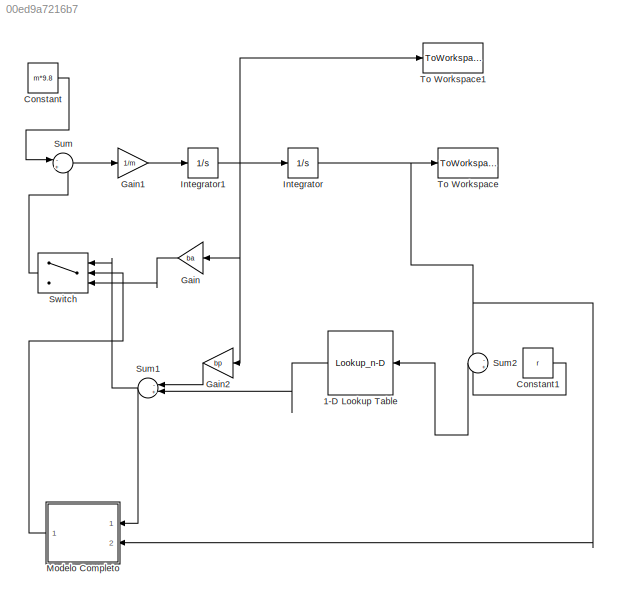
MODEL slx_00ed9a7216b7
KIND model
CONFIG AbsTol = auto
CONFIG EnableMultiTasking = on
CONFIG FixedStep = auto
CONFIG MaxStep = auto
CONFIG MinStep = auto
CONFIG RelTol = 1e-3
CONFIG SampleTimeConstraint = Unconstrained
CONFIG Solver = VariableStepAuto
CONFIG SolverName = VariableStepAuto
CONFIG StartTime = 0.0
CONFIG StopTime = 10
BLOCK [Lookup_n-D] 1-D Lookup Table
  BreakpointsForDimension1 = [0,0.000152979,0.000299869,0.000439218,0.000573908,0.000701165,0.000827118,0.000954278,0.001083536,0.001209584,0.001340158,0.001478477,0.00161775,0.001752221,0.001887395,0.002024889]
  InternalRulePriority = Speed
  NumberOfTableDimensions = 1
  Ports = [1, 1]
  RndMeth = Simplest
  Table = [0,0.0686,0.4214,1.029,1.8424,3.0282,4.4492,6.0564,7.84,10.241,12.74,14.798,16.905,19.6392,22.344,24.843]
BLOCK [Constant] Constant
  Value = m*9.8
BLOCK [Constant] Constant1
  Value = r
BLOCK [Gain] Gain
  Gain = ba
  OutDataTypeStr = Inherit: Inherit via internal rule
  ParamDataTypeStr = Inherit: Inherit via internal rule
  SaturateOnIntegerOverflow = off
BLOCK [Gain] Gain1
  Gain = 1/m
  OutDataTypeStr = Inherit: Inherit via internal rule
  ParamDataTypeStr = Inherit: Inherit via internal rule
  SaturateOnIntegerOverflow = off
BLOCK [Gain] Gain2
  Gain = bp
  OutDataTypeStr = Inherit: Inherit via internal rule
  ParamDataTypeStr = Inherit: Inherit via internal rule
  SaturateOnIntegerOverflow = off
BLOCK [Integrator] Integrator
  InitialCondition = y0
  Ports = [1, 1]
BLOCK [Integrator] Integrator1
  InitialCondition = v0y
  Ports = [1, 1]
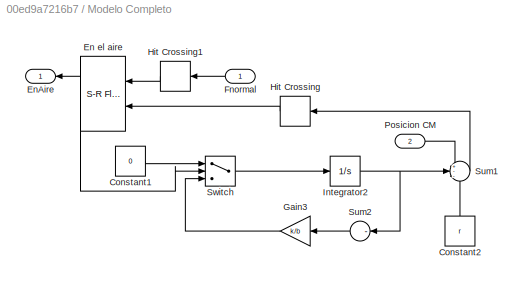
BLOCK [SubSystem] Modelo Completo
  Ports = [2, 1]
  RequestExecContextInheritance = off
BLOCK [Constant] Modelo Completo/Constant1
  Value = 0
BLOCK [Constant] Modelo Completo/Constant2
  Value = r
BLOCK [Reference] Modelo Completo/En el aire  REF=simulink_extras/Flip Flops/S-R
Flip-Flop
  Ports = [2, 2]
  SourceBlock = simulink_extras/Flip Flops/S-R\nFlip-Flop
  SourceProductBaseCode = SL
  SourceProductName = Simulink
  SourceType = SRFlipFlop
BLOCK [Outport] Modelo Completo/EnAire
  IconDisplay = Port number
BLOCK [Inport] Modelo Completo/Fnormal
  IconDisplay = Port number
BLOCK [Gain] Modelo Completo/Gain3
  Gain = k/b
  OutDataTypeStr = Inherit: Inherit via internal rule
  ParamDataTypeStr = Inherit: Inherit via internal rule
  SaturateOnIntegerOverflow = off
BLOCK [HitCross] Modelo Completo/Hit Crossing
  HitCrossingDirection = falling
  Ports = [1, 1]
BLOCK [HitCross] Modelo Completo/Hit Crossing1
  HitCrossingDirection = falling
  Ports = [1, 1]
BLOCK [Integrator] Modelo Completo/Integrator2
  InitialCondition = yp0
  Ports = [1, 1]
BLOCK [Inport] Modelo Completo/Posicion CM
  IconDisplay = Port number
  Port = 2
BLOCK [Sum] Modelo Completo/Sum1
  IconShape = round
  InputSameDT = off
  Inputs = +--
  OutDataTypeStr = Inherit: Inherit via internal rule
  Ports = [3, 1]
  SaturateOnIntegerOverflow = off
BLOCK [Sum] Modelo Completo/Sum2
  IconShape = round
  InputSameDT = off
  Inputs = -
  OutDataTypeStr = Inherit: Inherit via internal rule
  Ports = [1, 1]
  SaturateOnIntegerOverflow = off
BLOCK [Switch] Modelo Completo/Switch
  InputSameDT = off
  SaturateOnIntegerOverflow = off
  Threshold = 0.5
BLOCK [Sum] Sum
  IconShape = round
  InputSameDT = off
  Inputs = -+
  OutDataTypeStr = Inherit: Inherit via internal rule
  Ports = [2, 1]
  SaturateOnIntegerOverflow = off
BLOCK [Sum] Sum1
  IconShape = round
  InputSameDT = off
  Inputs = -+
  OutDataTypeStr = Inherit: Inherit via internal rule
  Ports = [2, 1]
  SaturateOnIntegerOverflow = off
BLOCK [Sum] Sum2
  IconShape = round
  InputSameDT = off
  Inputs = -+
  OutDataTypeStr = Inherit: Inherit via internal rule
  Ports = [2, 1]
  SaturateOnIntegerOverflow = off
BLOCK [Switch] Switch
  InputSameDT = off
  SaturateOnIntegerOverflow = off
BLOCK [ToWorkspace] To Workspace
  FixptAsFi = on
  MaxDataPoints = inf
  Ports = [1]
  SampleTime = 0.01
  SaveFormat = Structure With Time
  VariableName = y
BLOCK [ToWorkspace] To Workspace1
  FixptAsFi = on
  MaxDataPoints = inf
  Ports = [1]
  SampleTime = 0.01
  SaveFormat = Structure With Time
  VariableName = vy
LINE 1-D Lookup Table:1 -> Sum1:2
LINE Constant1:1 -> Sum2:2
LINE Constant:1 -> Sum:1
LINE Gain1:1 -> Integrator1:1
LINE Gain2:1 -> Sum1:1
LINE Gain:1 -> Switch:3
NET Integrator1:1 -> Gain2:1, Gain:1, Integrator:1, To Workspace1:1
NET Integrator:1 -> Modelo Completo:2, Sum2:1, To Workspace:1
LINE Modelo Completo/Constant1:1 -> Modelo Completo/Switch:1
LINE Modelo Completo/Constant2:1 -> Modelo Completo/Sum1:3
LINE Modelo Completo/En el aire:1 -> Modelo Completo/EnAire:1
LINE Modelo Completo/En el aire:2 -> Modelo Completo/Switch:2
LINE Modelo Completo/Fnormal:1 -> Modelo Completo/Hit Crossing1:1
LINE Modelo Completo/Gain3:1 -> Modelo Completo/Switch:3
LINE Modelo Completo/Hit Crossing1:1 -> Modelo Completo/En el aire:1
LINE Modelo Completo/Hit Crossing:1 -> Modelo Completo/En el aire:2
NET Modelo Completo/Integrator2:1 -> Modelo Completo/Sum1:2, Modelo Completo/Sum2:1
LINE Modelo Completo/Posicion CM:1 -> Modelo Completo/Sum1:1
LINE Modelo Completo/Sum1:1 -> Modelo Completo/Hit Crossing:1
LINE Modelo Completo/Sum2:1 -> Modelo Completo/Gain3:1
LINE Modelo Completo/Switch:1 -> Modelo Completo/Integrator2:1
LINE Modelo Completo:1 -> Switch:2
NET Sum1:1 -> Modelo Completo:1, Switch:1
LINE Sum2:1 -> 1-D Lookup Table:1
LINE Sum:1 -> Gain1:1
LINE Switch:1 -> Sum:2
note: NET lines group one-source signal fan-out (src -> all destinations, sorted); 1:1 wires keep LINE
